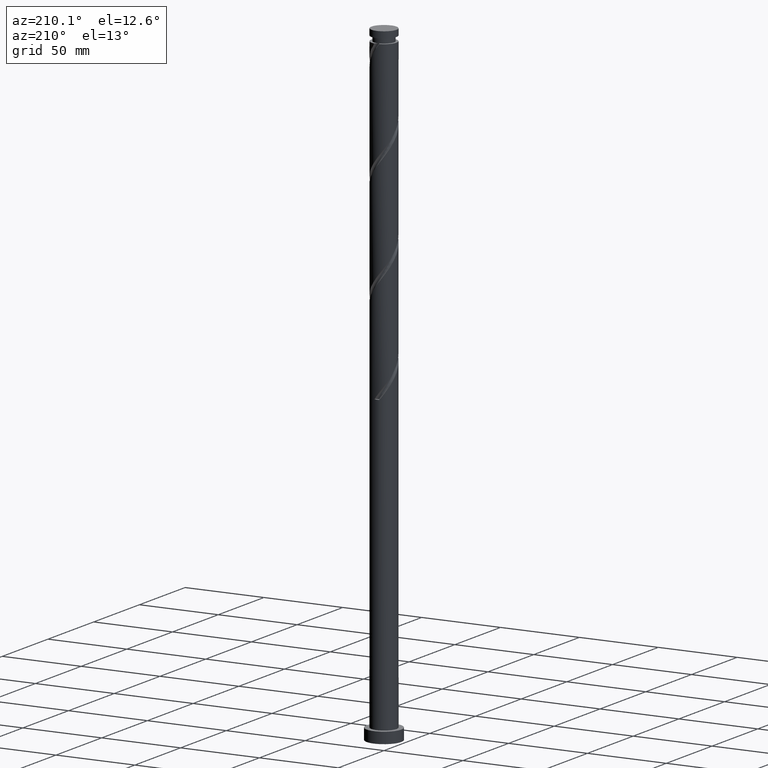
[diagram: clean part render]
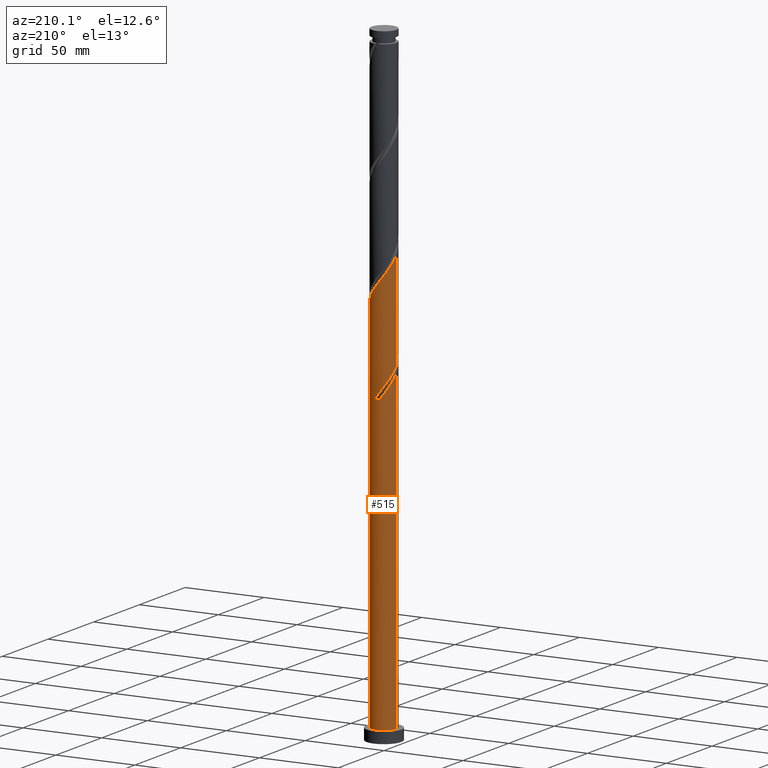
[diagram: same view with one face highlighted and labeled with its STEP entity id]
A machine part, auxiliary view. The second image highlights one B-rep face of the part: STEP entity #515.
In plain terms, the highlighted cylindrical surface (edge-blend (fillet) strip) has radius 8 mm, axis along (-0, -0, -1).
Its self-contained STEP definition (entity closure, byte-faithful):
#1 = CARTESIAN_POINT ( 'NONE',  ( 6.550564505562199713, 4.668737117872338693, 247.1939048921868789 ) ) ;
#11 = CARTESIAN_POINT ( 'NONE',  ( 4.761012956365819448, 6.429055578334734733, 250.5272382255201364 ) ) ;
#19 = CARTESIAN_POINT ( 'NONE',  ( 7.883184911777977533, 1.600748969715827918, 242.7494604477423366 ) ) ;
#23 = CARTESIAN_POINT ( 'NONE',  ( -7.585629115355306595, 2.541304964830873203, 203.8605715588534508 ) ) ;
#30 = CARTESIAN_POINT ( 'NONE',  ( -4.643161287442612029, 6.514679827803854018, 263.8605715588535077 ) ) ;
#32 = CARTESIAN_POINT ( 'NONE',  ( -3.320297584678856495, 7.278435542695678606, 199.4161271144090506 ) ) ;
#47 = CARTESIAN_POINT ( 'NONE',  ( 7.963458872121475629, 0.7637557148918298067, 241.6383493366312791 ) ) ;
#57 =( BOUNDED_CURVE ( )  B_SPLINE_CURVE ( 2, ( #328, #1899, #792, #349, #1140, #817, #1268, #203, #1550, #1247, #1877, #513, #32, #158, #662, #1407, #482, #951, #1717 ),
 .UNSPECIFIED., .F., .T. ) 
 B_SPLINE_CURVE_WITH_KNOTS ( ( 3, 2, 2, 2, 2, 2, 2, 2, 2, 3 ),
 ( 0.9295286012773115170, 0.9333333333333333481, 0.9416666666666666519, 0.9499999999999999556, 0.9583333333333333703, 0.9666666666666666741, 0.9749999999999999778, 0.9833333333333332815, 0.9916666666666666963, 1.000000000000000000 ),
 .UNSPECIFIED. ) 
 CURVE ( )  GEOMETRIC_REPRESENTATION_ITEM ( )  RATIONAL_B_SPLINE_CURVE ( ( 0.9066196499552144905, 0.9068171577856273258, 0.9090909090909261581, 0.9041108139711744318, 0.9090909090909261581, 0.9041108139711744318, 0.9090909090909261581, 0.9041108139711744318, 0.9090909090909261581, 0.9041108139711744318, 0.9090909090909261581, 0.9041108139711744318, 0.9090909090909261581, 0.9041108139711744318, 0.9090909090909261581, 0.9041108139711744318, 0.9090909090909261581, 0.9041108139711744318, 0.9090909090909261581 ) ) 
 REPRESENTATION_ITEM ( '' )  );
#68 = VECTOR ( 'NONE', #1099, 1000.000000000000000 ) ;
#103 = AXIS2_PLACEMENT_3D ( 'NONE', #1200, #1355, #1036 ) ;
#134 = VERTEX_POINT ( 'NONE', #1507 ) ;
#158 = CARTESIAN_POINT ( 'NONE',  ( -2.555303183033309278, 7.627412881187821014, 198.3050160032979079 ) ) ;
#176 = CARTESIAN_POINT ( 'NONE',  ( 7.378103982728165811, 3.204775068141452632, 244.9716826699645935 ) ) ;
#193 = CARTESIAN_POINT ( 'NONE',  ( -5.896175171267127091, 5.406950929103502723, 199.4161271144090506 ) ) ;
#200 = CARTESIAN_POINT ( 'NONE',  ( -2.415997103853502637, 7.672676170118332806, 260.5272382255200796 ) ) ;
#203 = CARTESIAN_POINT ( 'NONE',  ( -6.550564505562185502, 4.668737117872337805, 204.9716826699646219 ) ) ;
#262 = DIRECTION ( 'NONE',  ( 0.000000000000000000, -8.673617379884026006E-15, -1.000000000000000000 ) ) ;
#315 = CARTESIAN_POINT ( 'NONE',  ( -7.585629115355306595, 2.541304964830873203, 270.5272382255200796 ) ) ;
#316 = CARTESIAN_POINT ( 'NONE',  ( 5.436733926407221418, 5.928652952465930603, 249.4161271144090506 ) ) ;
#328 = CARTESIAN_POINT ( 'NONE',  ( -8.000000000000000000, 1.076285910287909705E-14, 211.5415703579305386 ) ) ;
#332 = DIRECTION ( 'NONE',  ( -0.000000000000000000, -0.000000000000000000, -1.000000000000000000 ) ) ;
#335 = CARTESIAN_POINT ( 'NONE',  ( -7.318527200449889136, 3.338586712009341539, 269.4161271144089937 ) ) ;
#336 = EDGE_CURVE ( 'NONE', #873, #382, #1104, .T. ) ;
#338 = CARTESIAN_POINT ( 'NONE',  ( 5.993649215984714118, 5.298695035169133760, 248.3050160032979079 ) ) ;
#349 = CARTESIAN_POINT ( 'NONE',  ( -7.883184911777966875, 1.600748969715829029, 209.4161271144090790 ) ) ;
#382 = VERTEX_POINT ( 'NONE', #1670 ) ;
#392 = CARTESIAN_POINT ( 'NONE',  ( 0.000000000000000000, 0.000000000000000000, 7.000000000000000000 ) ) ;
#396 = EDGE_LOOP ( 'NONE', ( #1463, #709, #553, #1024, #1889, #1478, #1059, #1892 ) ) ;
#429 = CIRCLE ( 'NONE', #521, 8.000000000000000000 ) ;
#471 =( BOUNDED_CURVE ( )  B_SPLINE_CURVE ( 2, ( #772, #1730, #47, #19, #1095, #176, #1396, #1, #338, #316, #11, #1886, #492, #1116, #1107, #1572, #962, #1596, #1290, #200, #1094, #939, #30, #647, #815, #1865, #660, #335, #315, #1414, #627, #1441, #1716 ),
 .UNSPECIFIED., .F., .T. ) 
 B_SPLINE_CURVE_WITH_KNOTS ( ( 3, 2, 2, 2, 2, 2, 2, 2, 2, 2, 2, 2, 2, 2, 2, 2, 3 ),
 ( 0.1795286012773116280, 0.1833333333333333481, 0.1916666666666666519, 0.1999999999999999556, 0.2083333333333333703, 0.2166666666666666741, 0.2249999999999999778, 0.2333333333333332815, 0.2416666666666666963, 0.2500000000000000000, 0.2583333333333333037, 0.2666666666666667185, 0.2750000000000000222, 0.2833333333333333259, 0.2916666666666666297, 0.3000000000000000444, 0.3045286012773118500 ),
 .UNSPECIFIED. ) 
 CURVE ( )  GEOMETRIC_REPRESENTATION_ITEM ( )  RATIONAL_B_SPLINE_CURVE ( ( 0.9066196499552205967, 0.9068171577856333210, 0.9090909090909321533, 0.9041108139711804270, 0.9090909090909321533, 0.9041108139711804270, 0.9090909090909321533, 0.9041108139711804270, 0.9090909090909321533, 0.9041108139711804270, 0.9090909090909321533, 0.9041108139711804270, 0.9090909090909321533, 0.9041108139711804270, 0.9090909090909321533, 0.9041108139711804270, 0.9090909090909321533, 0.9041108139711804270, 0.9090909090909321533, 0.9041108139711804270, 0.9090909090909321533, 0.9041108139711804270, 0.9090909090909321533, 0.9041108139711804270, 0.9090909090909321533, 0.9041108139711804270, 0.9090909090909321533, 0.9041108139711804270, 0.9090909090909321533, 0.9041108139711804270, 0.9090909090909321533, 0.9063845652764790373, 0.9066196499552204857 ) ) 
 REPRESENTATION_ITEM ( '' )  );
#482 = CARTESIAN_POINT ( 'NONE',  ( -0.07283633702543784727, 7.999668422379062172, 194.9716826699646788 ) ) ;
#485 = CARTESIAN_POINT ( 'NONE',  ( -1.591979899370595586, 7.840000000000008740, 192.7494604477423934 ) ) ;
#492 = CARTESIAN_POINT ( 'NONE',  ( 3.320297584678864045, 7.278435542695687488, 252.7494604477423934 ) ) ;
#495 = CARTESIAN_POINT ( 'NONE',  ( -8.000000000000010658, 0.4557898995714491641, 206.6850925615029837 ) ) ;
#513 = CARTESIAN_POINT ( 'NONE',  ( -4.085291986324403268, 6.929458204203534422, 200.5272382255201933 ) ) ;
#515 = ADVANCED_FACE ( 'NONE', ( #571 ), #1797, .T. ) ;
#521 = AXIS2_PLACEMENT_3D ( 'NONE', #392, #684, #1450 ) ;
#553 = ORIENTED_EDGE ( 'NONE', *, *, #1033, .T. ) ;
#571 = FACE_OUTER_BOUND ( 'NONE', #396, .T. ) ;
#588 = VECTOR ( 'NONE', #1262, 1000.000000000000000 ) ;
#614 = CARTESIAN_POINT ( 'NONE',  ( 8.000000000000000000, 9.797174393178825657E-16, 7.000000000000000000 ) ) ;
#615 = LINE ( 'NONE', #1089, #1694 ) ;
#623 = CARTESIAN_POINT ( 'NONE',  ( 8.000000000000000000, 9.797174393178825657E-16, 400.0000000000000000 ) ) ;
#627 = CARTESIAN_POINT ( 'NONE',  ( -7.948231931362846225, 0.9086303787922809239, 272.7494604477423650 ) ) ;
#647 = CARTESIAN_POINT ( 'NONE',  ( -5.327881728744665146, 6.026663911472003754, 264.9716826699645935 ) ) ;
#653 = CARTESIAN_POINT ( 'NONE',  ( -3.187218974997030330, 7.337685957127018099, 194.9716826699646504 ) ) ;
#660 = CARTESIAN_POINT ( 'NONE',  ( -6.891497907119741306, 4.062912329372172060, 268.3050160032978511 ) ) ;
#662 = CARTESIAN_POINT ( 'NONE',  ( -1.734469275985939030, 7.809712948032135671, 197.1939048921868221 ) ) ;
#665 = VERTEX_POINT ( 'NONE', #614 ) ;
#684 = DIRECTION ( 'NONE',  ( 0.000000000000000000, 0.000000000000000000, 1.000000000000000000 ) ) ;
#703 = EDGE_CURVE ( 'NONE', #1175, #905, #749, .T. ) ;
#709 = ORIENTED_EDGE ( 'NONE', *, *, #1517, .T. ) ;
#716 = AXIS2_PLACEMENT_3D ( 'NONE', #1807, #262, #1346 ) ;
#749 = LINE ( 'NONE', #1371, #68 ) ;
#772 = CARTESIAN_POINT ( 'NONE',  ( 8.000000000000010658, 4.454627795358263519E-15, 240.6240172042209053 ) ) ;
#778 = CARTESIAN_POINT ( 'NONE',  ( -8.000000000000010658, -7.145342571078021611E-15, 273.9573505375541913 ) ) ;
#792 = CARTESIAN_POINT ( 'NONE',  ( -7.963458872121463195, 0.7637557148918372452, 210.5272382255201933 ) ) ;
#795 = CARTESIAN_POINT ( 'NONE',  ( -6.891497907119741306, 4.062912329372172060, 201.6383493366312507 ) ) ;
#815 = CARTESIAN_POINT ( 'NONE',  ( -5.896175171267127091, 5.406950929103502723, 266.0827937810756794 ) ) ;
#817 = CARTESIAN_POINT ( 'NONE',  ( -7.378103982728151600, 3.204775068141456185, 207.1939048921868505 ) ) ;
#873 = VERTEX_POINT ( 'NONE', #1119 ) ;
#905 = VERTEX_POINT ( 'NONE', #1272 ) ;
#913 = EDGE_CURVE ( 'NONE', #873, #1175, #1378, .T. ) ;
#934 = LINE ( 'NONE', #623, #588 ) ;
#939 = CARTESIAN_POINT ( 'NONE',  ( -3.958440846140559355, 7.002695744135703393, 262.7494604477423650 ) ) ;
#951 = CARTESIAN_POINT ( 'NONE',  ( 0.7679626948876935311, 8.007323829881674015, 193.8605715588534792 ) ) ;
#955 = CARTESIAN_POINT ( 'NONE',  ( -4.643161287442612029, 6.514679827803854018, 197.1939048921868505 ) ) ;
#962 = CARTESIAN_POINT ( 'NONE',  ( 0.07283633702544377309, 7.999668422379072830, 257.1939048921868789 ) ) ;
#967 = CARTESIAN_POINT ( 'NONE',  ( -2.415997103853502637, 7.672676170118332806, 193.8605715588534792 ) ) ;
#1024 = ORIENTED_EDGE ( 'NONE', *, *, #703, .F. ) ;
#1033 = EDGE_CURVE ( 'NONE', #665, #905, #429, .T. ) ;
#1036 = DIRECTION ( 'NONE',  ( -1.000000000000000000, 0.000000000000000000, 0.000000000000000000 ) ) ;
#1059 = ORIENTED_EDGE ( 'NONE', *, *, #1752, .F. ) ;
#1089 = CARTESIAN_POINT ( 'NONE',  ( -8.000000000000000000, 0.000000000000000000, 400.0000000000000000 ) ) ;
#1094 = CARTESIAN_POINT ( 'NONE',  ( -3.187218974997030330, 7.337685957127018099, 261.6383493366312791 ) ) ;
#1095 = CARTESIAN_POINT ( 'NONE',  ( 7.630644447253070339, 2.402762018928641830, 243.8605715588535077 ) ) ;
#1099 = DIRECTION ( 'NONE',  ( -0.000000000000000000, -0.000000000000000000, -1.000000000000000000 ) ) ;
#1104 = CIRCLE ( 'NONE', #716, 8.000000000000000000 ) ;
#1107 = CARTESIAN_POINT ( 'NONE',  ( 1.734469275985949466, 7.809712948032144553, 254.9716826699646219 ) ) ;
#1110 = CARTESIAN_POINT ( 'NONE',  ( -3.958440846140559355, 7.002695744135703393, 196.0827937810756794 ) ) ;
#1116 = CARTESIAN_POINT ( 'NONE',  ( 2.555303183033317271, 7.627412881187830784, 253.8605715588534508 ) ) ;
#1119 = CARTESIAN_POINT ( 'NONE',  ( -1.591979899370595808, 7.840000000000008740, 192.7494604477423934 ) ) ;
#1140 = CARTESIAN_POINT ( 'NONE',  ( -7.630644447253058793, 2.402762018928644050, 208.3050160032979647 ) ) ;
#1175 = VERTEX_POINT ( 'NONE', #1779 ) ;
#1200 = CARTESIAN_POINT ( 'NONE',  ( 0.000000000000000000, 0.000000000000000000, 400.0000000000000000 ) ) ;
#1247 = CARTESIAN_POINT ( 'NONE',  ( -5.436733926407212536, 5.928652952465924386, 202.7494604477423366 ) ) ;
#1262 = DIRECTION ( 'NONE',  ( -0.000000000000000000, -0.000000000000000000, -1.000000000000000000 ) ) ;
#1268 = CARTESIAN_POINT ( 'NONE',  ( -6.964334244145168995, 3.936756093006895885, 206.0827937810756509 ) ) ;
#1272 = CARTESIAN_POINT ( 'NONE',  ( -8.000000000000000000, 0.000000000000000000, 7.000000000000000000 ) ) ;
#1285 = CARTESIAN_POINT ( 'NONE',  ( -5.327881728744665146, 6.026663911472003754, 198.3050160032979363 ) ) ;
#1290 = CARTESIAN_POINT ( 'NONE',  ( -1.591979899370595364, 7.840000000000008740, 259.4161271144091074 ) ) ;
#1346 = DIRECTION ( 'NONE',  ( 0.000000000000000000, 1.000000000000000000, -6.938893903907228378E-15 ) ) ;
#1355 = DIRECTION ( 'NONE',  ( -0.000000000000000000, -0.000000000000000000, -1.000000000000000000 ) ) ;
#1371 = CARTESIAN_POINT ( 'NONE',  ( -8.000000000000000000, 0.000000000000000000, 400.0000000000000000 ) ) ;
#1378 =( BOUNDED_CURVE ( )  B_SPLINE_CURVE ( 2, ( #485, #967, #653, #1110, #955, #1285, #193, #1434, #795, #1420, #23, #1743, #1890, #495, #1902 ),
 .UNSPECIFIED., .F., .T. ) 
 B_SPLINE_CURVE_WITH_KNOTS ( ( 3, 2, 2, 2, 2, 2, 2, 3 ),
 ( 0.000000000000000000, 0.008333333333333303727, 0.01666666666666671848, 0.02500000000000002220, 0.03333333333333332593, 0.04166666666666662966, 0.05000000000000004441, 0.05452860127731160717 ),
 .UNSPECIFIED. ) 
 CURVE ( )  GEOMETRIC_REPRESENTATION_ITEM ( )  RATIONAL_B_SPLINE_CURVE ( ( 0.9090909090909321533, 0.9041108139711804270, 0.9090909090909321533, 0.9041108139711804270, 0.9090909090909321533, 0.9041108139711804270, 0.9090909090909321533, 0.9041108139711804270, 0.9090909090909321533, 0.9041108139711804270, 0.9090909090909321533, 0.9041108139711804270, 0.9090909090909321533, 0.9063845652764792593, 0.9066196499552205967 ) ) 
 REPRESENTATION_ITEM ( '' )  );
#1396 = CARTESIAN_POINT ( 'NONE',  ( 6.964334244145181430, 3.936756093006899437, 246.0827937810757078 ) ) ;
#1407 = CARTESIAN_POINT ( 'NONE',  ( -0.9136353689385701138, 7.992013014876450328, 196.0827937810757362 ) ) ;
#1414 = CARTESIAN_POINT ( 'NONE',  ( -7.852731030260721390, 1.744023217652404423, 271.6383493366312791 ) ) ;
#1420 = CARTESIAN_POINT ( 'NONE',  ( -7.318527200449889136, 3.338586712009341539, 202.7494604477423650 ) ) ;
#1434 = CARTESIAN_POINT ( 'NONE',  ( -6.464468613789590812, 4.787237946735002581, 200.5272382255202217 ) ) ;
#1441 = CARTESIAN_POINT ( 'NONE',  ( -8.000000000000015987, 0.4557898995714249613, 273.3517592281696693 ) ) ;
#1450 = DIRECTION ( 'NONE',  ( 1.000000000000000000, 0.000000000000000000, 0.000000000000000000 ) ) ;
#1463 = ORIENTED_EDGE ( 'NONE', *, *, #1787, .F. ) ;
#1478 = ORIENTED_EDGE ( 'NONE', *, *, #336, .T. ) ;
#1491 = VERTEX_POINT ( 'NONE', #778 ) ;
#1492 = EDGE_CURVE ( 'NONE', #1491, #134, #615, .T. ) ;
#1507 = CARTESIAN_POINT ( 'NONE',  ( -8.000000000000000000, 1.076285910287909705E-14, 211.5415703579305386 ) ) ;
#1517 = EDGE_CURVE ( 'NONE', #1817, #665, #934, .T. ) ;
#1550 = CARTESIAN_POINT ( 'NONE',  ( -5.993649215984697243, 5.298695035169130207, 203.8605715588535077 ) ) ;
#1561 = CARTESIAN_POINT ( 'NONE',  ( 8.000000000000010658, 4.454627795358263519E-15, 240.6240172042209053 ) ) ;
#1572 = CARTESIAN_POINT ( 'NONE',  ( 0.9136353689385744437, 7.992013014876460097, 256.0827937810757362 ) ) ;
#1596 = CARTESIAN_POINT ( 'NONE',  ( -0.7679626948876867587, 8.007323829881686450, 258.3050160032979647 ) ) ;
#1670 = CARTESIAN_POINT ( 'NONE',  ( 1.591979899370598694, 7.839999999999998082, 192.7494604477423934 ) ) ;
#1694 = VECTOR ( 'NONE', #332, 1000.000000000000000 ) ;
#1716 = CARTESIAN_POINT ( 'NONE',  ( -8.000000000000010658, -7.145342571078021611E-15, 273.9573505375541913 ) ) ;
#1717 = CARTESIAN_POINT ( 'NONE',  ( 1.591979899370598694, 7.839999999999998082, 192.7494604477423934 ) ) ;
#1730 = CARTESIAN_POINT ( 'NONE',  ( 8.000000000000008882, 0.3827519942940071918, 241.1325657297849716 ) ) ;
#1743 = CARTESIAN_POINT ( 'NONE',  ( -7.852731030260721390, 1.744023217652404423, 204.9716826699645935 ) ) ;
#1752 = EDGE_CURVE ( 'NONE', #134, #382, #57, .T. ) ;
#1779 = CARTESIAN_POINT ( 'NONE',  ( -8.000000000000010658, -7.145342571078021611E-15, 207.2906838708875910 ) ) ;
#1787 = EDGE_CURVE ( 'NONE', #1817, #1491, #471, .T. ) ;
#1797 = CYLINDRICAL_SURFACE ( 'NONE', #103, 8.000000000000000000 ) ;
#1807 = CARTESIAN_POINT ( 'NONE',  ( 0.000000000000000000, 0.000000000000000000, 192.7494604477424502 ) ) ;
#1817 = VERTEX_POINT ( 'NONE', #1561 ) ;
#1865 = CARTESIAN_POINT ( 'NONE',  ( -6.464468613789590812, 4.787237946735002581, 267.1939048921868221 ) ) ;
#1877 = CARTESIAN_POINT ( 'NONE',  ( -4.761012956365806126, 6.429055578334728516, 201.6383493366312791 ) ) ;
#1886 = CARTESIAN_POINT ( 'NONE',  ( 4.085291986324416591, 6.929458204203540639, 251.6383493366313360 ) ) ;
#1889 = ORIENTED_EDGE ( 'NONE', *, *, #913, .F. ) ;
#1890 = CARTESIAN_POINT ( 'NONE',  ( -7.948231931362846225, 0.9086303787922809239, 206.0827937810756794 ) ) ;
#1892 = ORIENTED_EDGE ( 'NONE', *, *, #1492, .F. ) ;
#1899 = CARTESIAN_POINT ( 'NONE',  ( -7.999999999999998224, 0.3827519942940028619, 211.0330218323664440 ) ) ;
#1902 = CARTESIAN_POINT ( 'NONE',  ( -8.000000000000010658, -7.145342571078021611E-15, 207.2906838708875910 ) ) ;